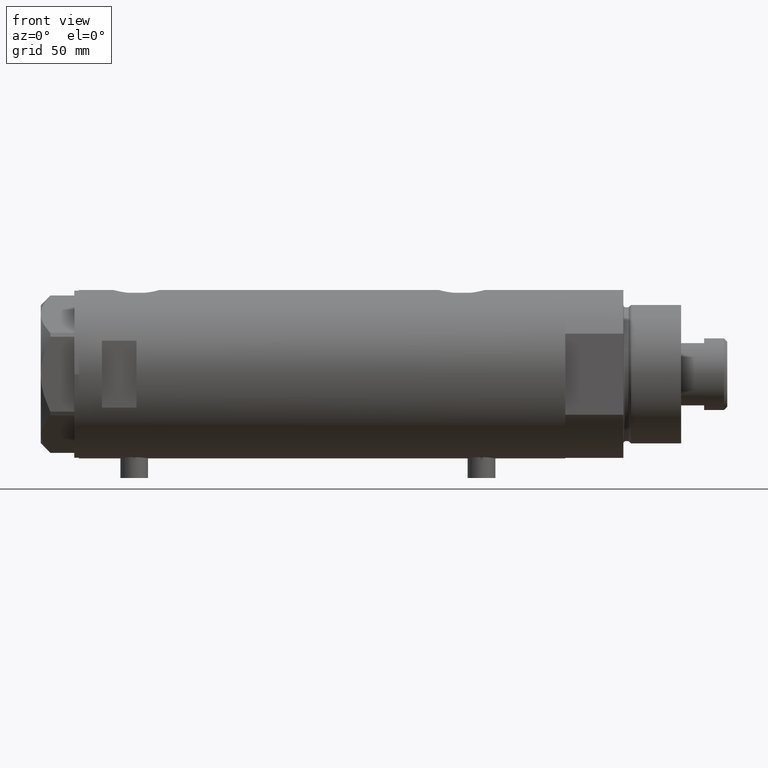
[diagram: clean part render]
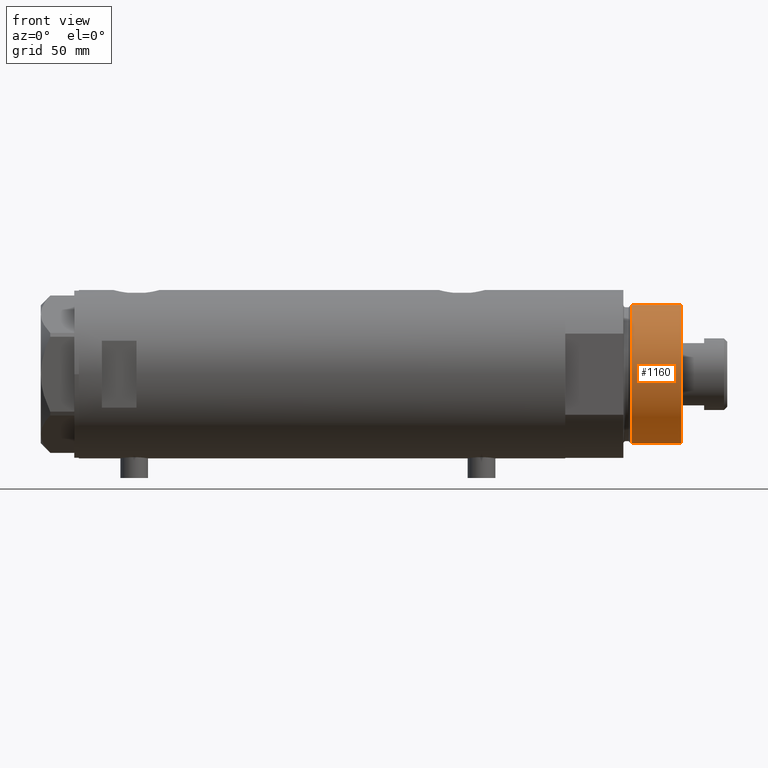
[diagram: same view with one face highlighted and labeled with its STEP entity id]
A machine part, front view. The second image highlights one B-rep face of the part: STEP entity #1160.
In plain terms, the highlighted cylindrical surface (partial cylindrical patch) has radius 30 mm, axis along (-1, -0, 0).
Its self-contained STEP definition (entity closure, byte-faithful):
#26 = CARTESIAN_POINT ( 'NONE',  ( 30.00000000000000000, 3.673940397442058389E-15, 50.19999999999999574 ) ) ;
#276 = FACE_OUTER_BOUND ( 'NONE', #3043, .T. ) ;
#296 = ORIENTED_EDGE ( 'NONE', *, *, #2486, .T. ) ;
#352 = DIRECTION ( 'NONE',  ( -0.000000000000000000, -0.000000000000000000, 1.000000000000000000 ) ) ;
#694 = DIRECTION ( 'NONE',  ( -0.000000000000000000, -0.000000000000000000, -1.000000000000000000 ) ) ;
#1007 = CYLINDRICAL_SURFACE ( 'NONE', #1297, 30.00000000000000000 ) ;
#1014 = ORIENTED_EDGE ( 'NONE', *, *, #1830, .F. ) ;
#1076 = DIRECTION ( 'NONE',  ( -0.000000000000000000, -0.000000000000000000, -1.000000000000000000 ) ) ;
#1160 = ADVANCED_FACE ( 'NONE', ( #276 ), #1007, .T. ) ;
#1297 = AXIS2_PLACEMENT_3D ( 'NONE', #1310, #694, #2007 ) ;
#1310 = CARTESIAN_POINT ( 'NONE',  ( 0.000000000000000000, 0.000000000000000000, 50.19999999999999574 ) ) ;
#1381 = VECTOR ( 'NONE', #1076, 1000.000000000000000 ) ;
#1394 = CARTESIAN_POINT ( 'NONE',  ( 0.000000000000000000, 0.000000000000000000, 50.19999999999999574 ) ) ;
#1478 = LINE ( 'NONE', #1761, #2740 ) ;
#1691 = VERTEX_POINT ( 'NONE', #4146 ) ;
#1714 = CARTESIAN_POINT ( 'NONE',  ( -30.00000000000000000, 0.000000000000000000, 28.57384048104054486 ) ) ;
#1761 = CARTESIAN_POINT ( 'NONE',  ( -30.00000000000000000, 0.000000000000000000, 50.19999999999999574 ) ) ;
#1816 = VERTEX_POINT ( 'NONE', #4368 ) ;
#1830 = EDGE_CURVE ( 'NONE', #2047, #1691, #3814, .T. ) ;
#1852 = AXIS2_PLACEMENT_3D ( 'NONE', #1394, #2034, #4110 ) ;
#2007 = DIRECTION ( 'NONE',  ( -1.000000000000000000, 0.000000000000000000, 0.000000000000000000 ) ) ;
#2034 = DIRECTION ( 'NONE',  ( 0.000000000000000000, 0.000000000000000000, 1.000000000000000000 ) ) ;
#2047 = VERTEX_POINT ( 'NONE', #2559 ) ;
#2486 = EDGE_CURVE ( 'NONE', #2047, #4081, #1478, .T. ) ;
#2559 = CARTESIAN_POINT ( 'NONE',  ( -30.00000000000000000, 0.000000000000000000, 50.19999999999999574 ) ) ;
#2740 = VECTOR ( 'NONE', #3859, 1000.000000000000000 ) ;
#2750 = CARTESIAN_POINT ( 'NONE',  ( 0.000000000000000000, 0.000000000000000000, 28.57384048104054486 ) ) ;
#2773 = ORIENTED_EDGE ( 'NONE', *, *, #4207, .F. ) ;
#2802 = EDGE_CURVE ( 'NONE', #4081, #1816, #3819, .T. ) ;
#3043 = EDGE_LOOP ( 'NONE', ( #2773, #1014, #296, #3702 ) ) ;
#3056 = DIRECTION ( 'NONE',  ( 1.000000000000000000, 0.000000000000000000, 0.000000000000000000 ) ) ;
#3702 = ORIENTED_EDGE ( 'NONE', *, *, #2802, .T. ) ;
#3814 = CIRCLE ( 'NONE', #1852, 30.00000000000000000 ) ;
#3819 = CIRCLE ( 'NONE', #4030, 30.00000000000000000 ) ;
#3859 = DIRECTION ( 'NONE',  ( -0.000000000000000000, -0.000000000000000000, -1.000000000000000000 ) ) ;
#4030 = AXIS2_PLACEMENT_3D ( 'NONE', #2750, #352, #3056 ) ;
#4081 = VERTEX_POINT ( 'NONE', #1714 ) ;
#4110 = DIRECTION ( 'NONE',  ( 1.000000000000000000, 0.000000000000000000, 0.000000000000000000 ) ) ;
#4139 = LINE ( 'NONE', #26, #1381 ) ;
#4146 = CARTESIAN_POINT ( 'NONE',  ( 30.00000000000000000, 3.673940397442058389E-15, 50.19999999999999574 ) ) ;
#4207 = EDGE_CURVE ( 'NONE', #1691, #1816, #4139, .T. ) ;
#4368 = CARTESIAN_POINT ( 'NONE',  ( 30.00000000000000000, 3.673940397442058389E-15, 28.57384048104054486 ) ) ;